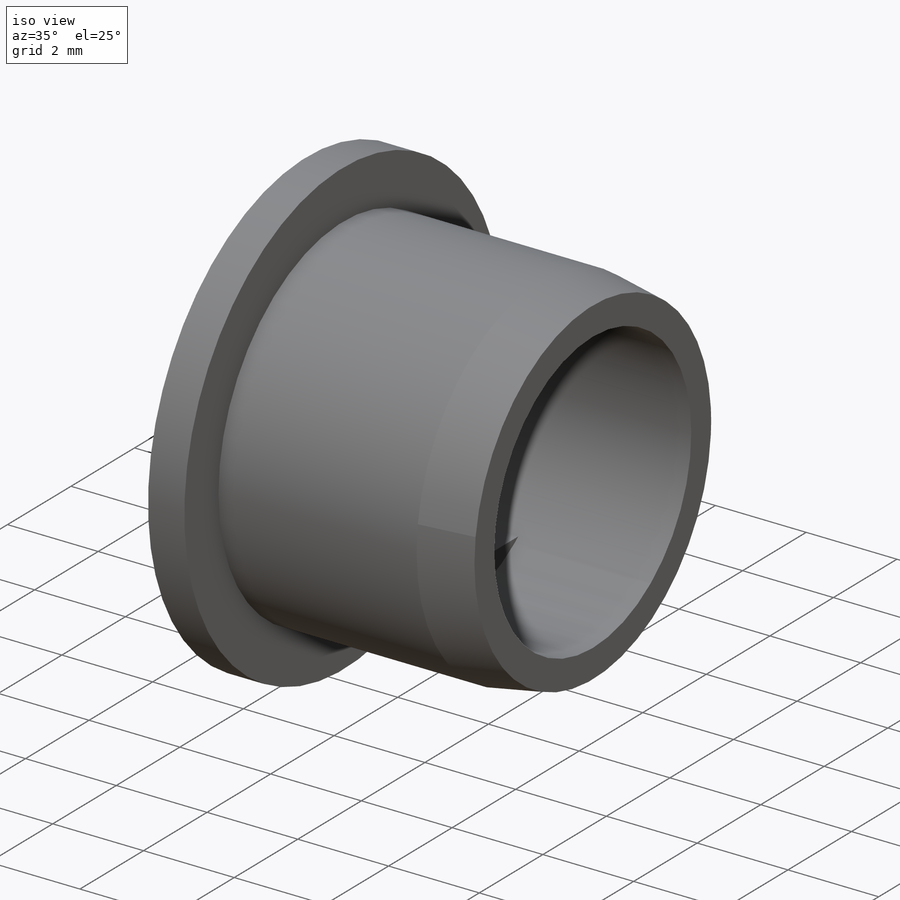
[diagram: iso view]
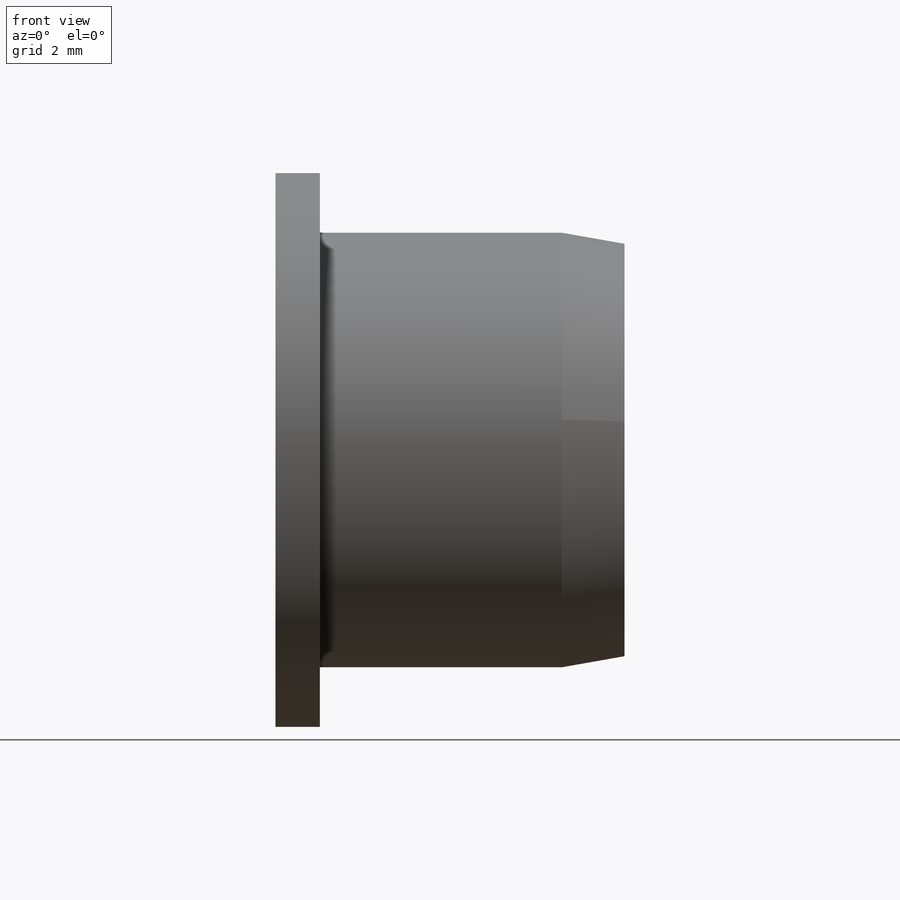
[diagram: front view]
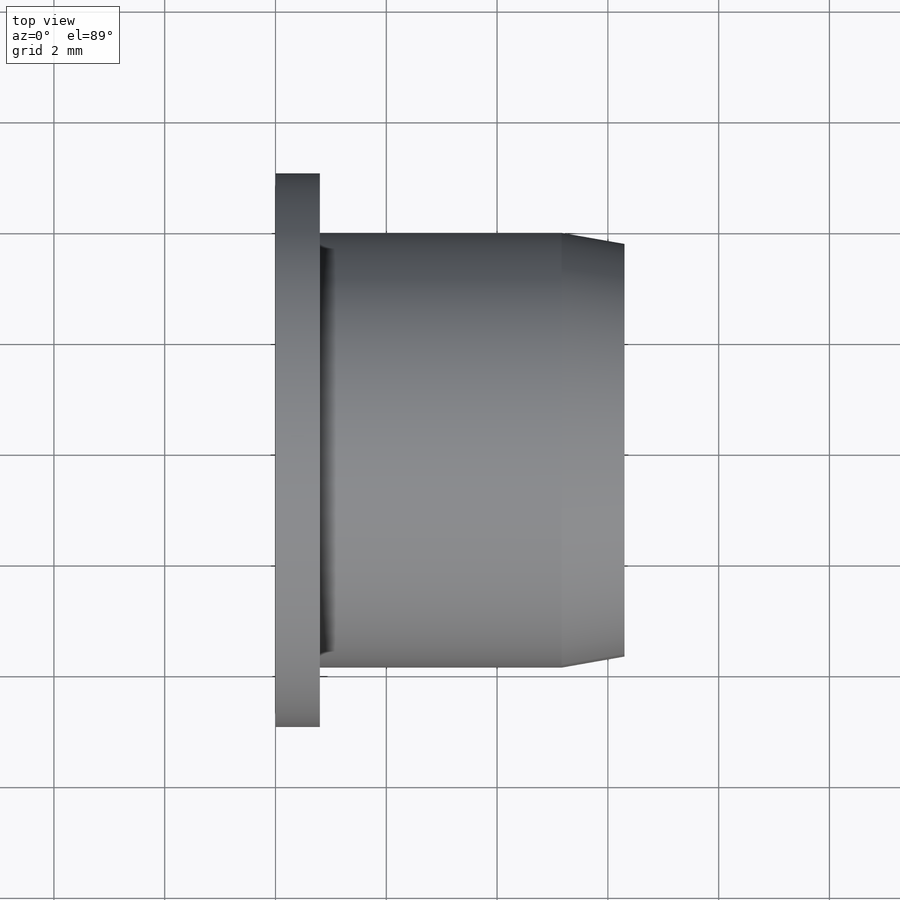
[diagram: top view]
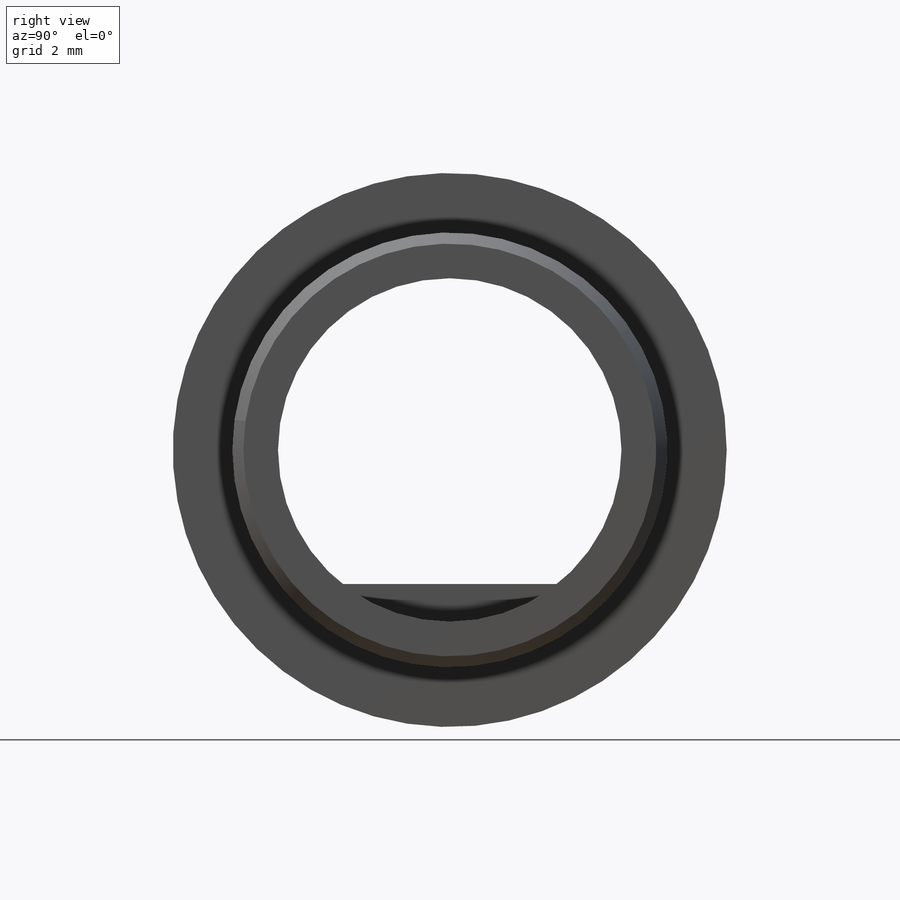
[diagram: right view]
SOLIDWORKS PART (.sldprt)
format: sldprt  version: not decoded by parser v0  size: 2,223,104 bytes
history: native  units: mm
features: sketch x15, cut_extrude x7, extrude x6, fillet x3, chamfer x3, cut_revolve x2, material x1, pattern_circular x1 (+11 scaffold rows collapsed)
feature tree (49):
  scaffold x11  (default folders/planes/origin — collapsed)
  material  "Material <not specified>"
  sketch  "Sketch1"  dims[D1=38.0mm D2=6.2mm D3=7.85mm D4=17.0mm D5=40.0mm D7=3.03mm D6=2.42mm]
  extrude  "Boss-Extrude1"  Depth=150mm
  extrude  "Boss-Extrude2"  [1 undecoded]
  sketch  "Sketch1<3>"  dims[D1=0.8mm]
  extrude  "Boss-Extrude3"  [1 undecoded]
  sketch  "Sketch1<4>"  dims[D1=8.5mm]
  extrude  "Boss-Extrude4"  [1 undecoded]
  sketch  "Sketch1<9>"  dims[D1=0.8mm]
  extrude  "Boss-Extrude5"  [1 undecoded]
  sketch  "Sketch1<10>"  dims[D1=5.5mm]
  sketch  "Sketch2"  dims[c1.D1=0.5mm c1.D2=2.0mm c2.D1=1.4mm c2.D3=26.0mm c2.D4=1.0mm c2.D5=1.0mm c2.D6=~29.654563mm c2.D7=2.0mm c2.D8=28.0mm c2.D9=20.0mm c2.D10=~0.661399mm c2.D11=11.0mm c3.D10=0.1mm c3.D6=5.0]
  cut_revolve  "Cut-Revolve1"  Angle=360deg
  sketch  "Sketch3"  dims[c1.D1=45.0mm c1.D2=~37.587705mm c1.D3=40.0mm c1.D4=33.75mm c1.D5=~18.793852mm c2.D5=~4.771042deg c2.D6=~18.793852mm c3.D6=~4.771042deg]
  extrude  "Boss-Extrude6"  Depth=10mm
  cut_extrude  "Cut-Extrude1"  [1 undecoded]
  sketch  "Sketch1<5>"  dims[D1=20.0mm]
  cut_extrude  "Cut-Extrude2"  [1 undecoded]
  sketch  "Sketch1<8>"  dims[D1=3.0mm]
  cut_extrude  "Cut-Extrude3"  [1 undecoded]
  sketch  "Sketch3<3>"  dims[D1=10.0mm]
  fillet  "Fillet1"  Radius=0.5mm
  fillet  "Fillet2"  Radius=1mm
  pattern_circular  "CirPattern1"  Count=16 Angle=360deg
  sketch  "Sketch4"  dims[D1=0.1mm]
  cut_extrude  "Cut-Extrude4"  Depth=10mm
  sketch  "Sketch5"  dims[c1.D1=10.0mm c1.D2=~6.357753mm c2.D2=8.0deg c2.D3=~6.295879mm c3.D3=8.0deg c3.D4=22.5mm c3.D5=20.0mm]
  cut_revolve  "Cut-Revolve2"  Angle=360deg
  chamfer  "Chamfer1"  Distance=0.2mm Angle=80deg
  chamfer  "Chamfer2"  Distance=0.2mm Angle=80deg
  fillet  "Fillet4"  Radius=1mm
  chamfer  "Chamfer3"  Distance=0.2mm Angle=80deg
  sketch  "Sketch6"  dims[D1=~38.66916mm]
  cut_extrude  "Cut-Extrude5"  [1 undecoded]
  sketch  "Sketch7"  dims[D1=14.0mm]
  cut_extrude  "Cut-Extrude6"  Depth=10mm
  sketch  "Sketch8"  dims[D1=10.0mm]
  cut_extrude  "Cut-Extrude7"  Depth=10mm
decode coverage: 29 of 37 modeling features carry decoded parameters
note: ~ marks probable driven/reference dimensions
note: 8 parameter values undecoded
summary: no parameter record found for 8 features
note: suppression state not decoded; provenance and decode notes live in map.json
